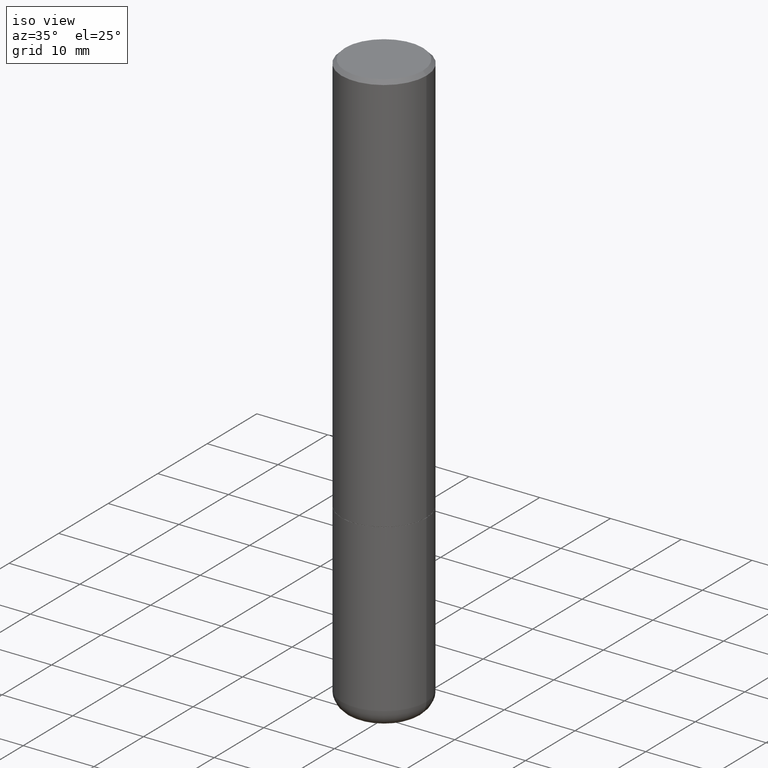
[diagram: clean part render]
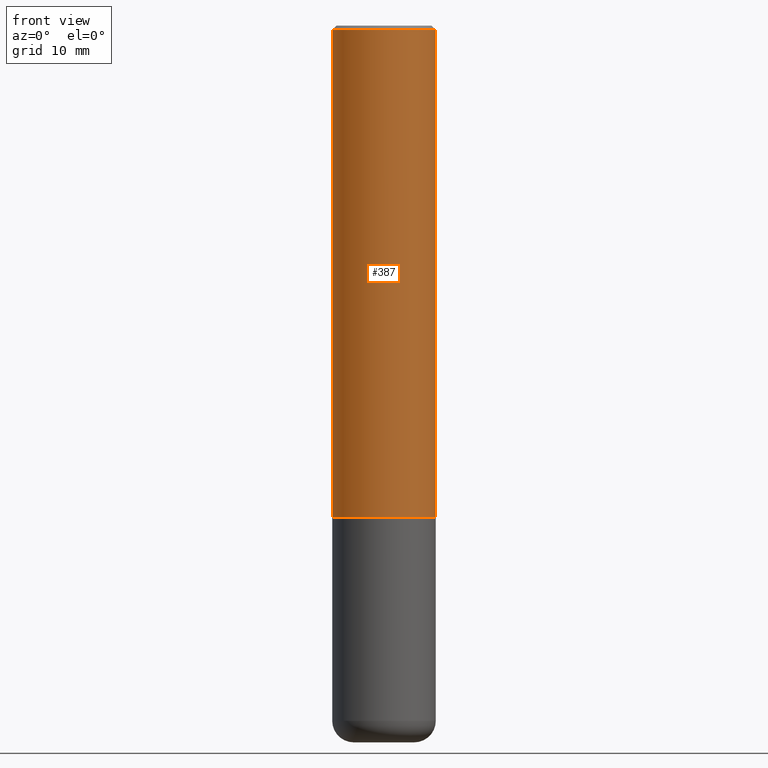
[diagram: tour spotlight — one face highlighted and labeled with its STEP entity id]
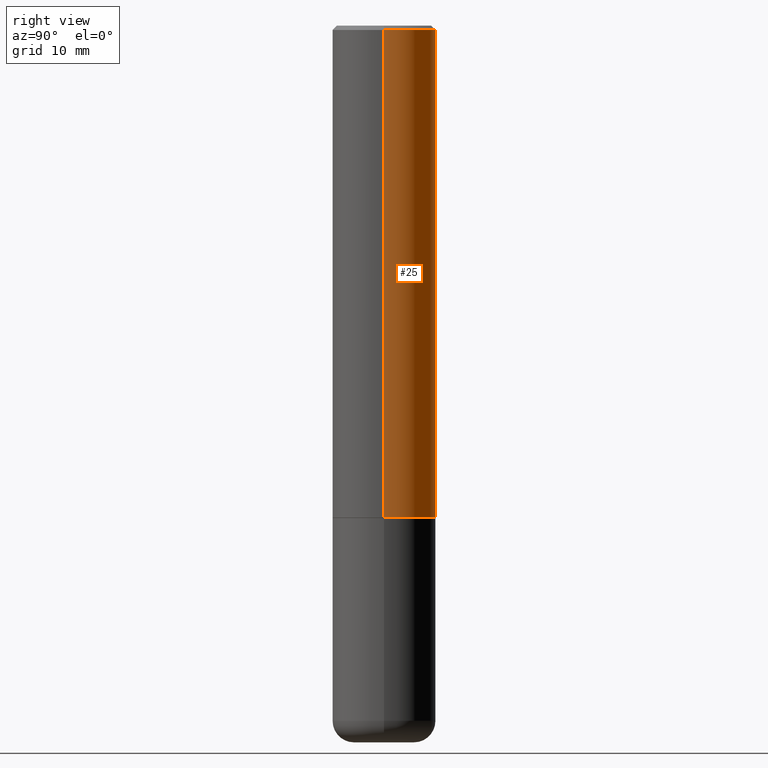
[diagram: tour spotlight — one face highlighted and labeled with its STEP entity id]
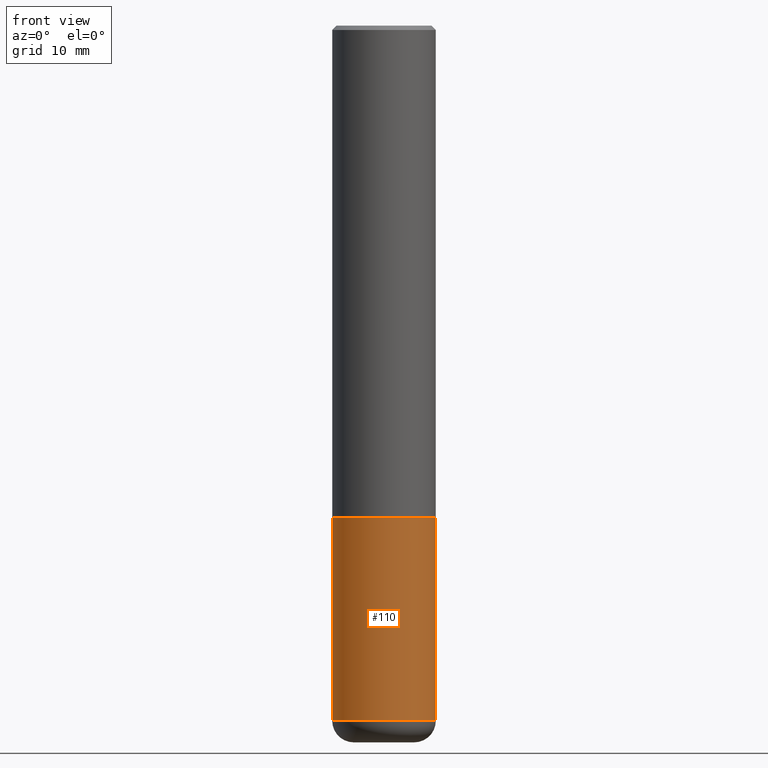
[diagram: tour spotlight — one face highlighted and labeled with its STEP entity id]
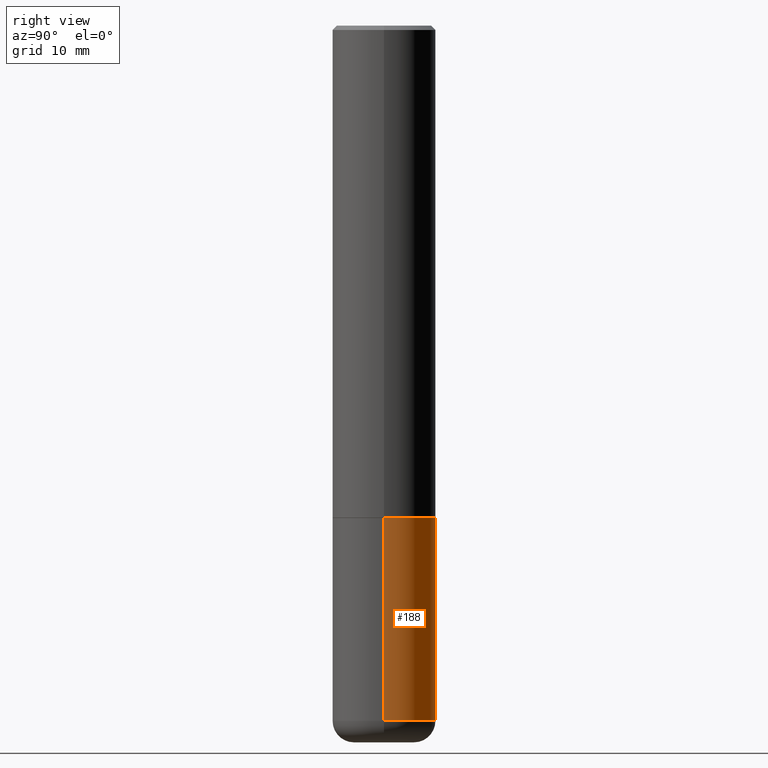
[diagram: tour spotlight — one face highlighted and labeled with its STEP entity id]
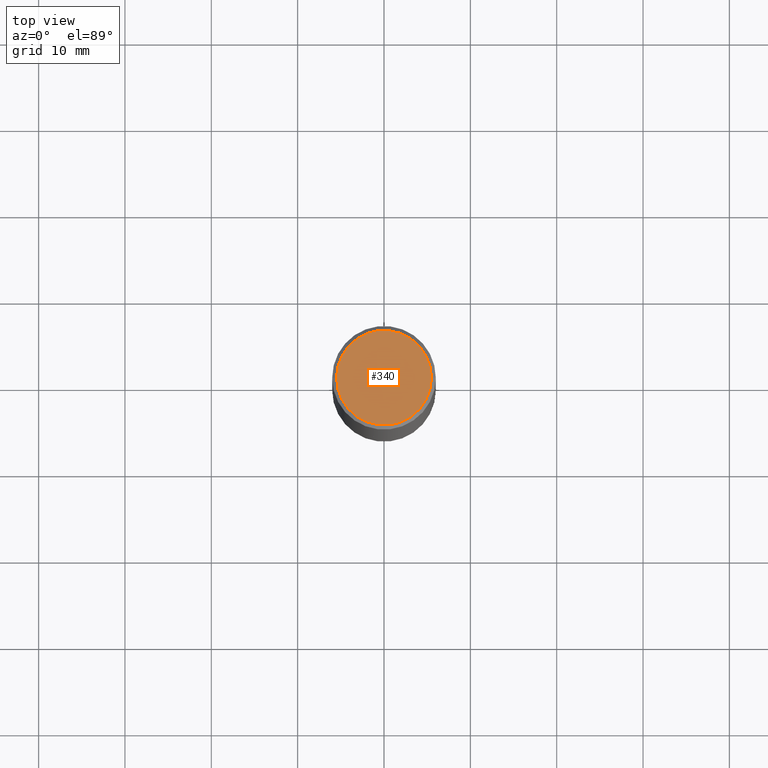
[diagram: tour spotlight — one face highlighted and labeled with its STEP entity id]
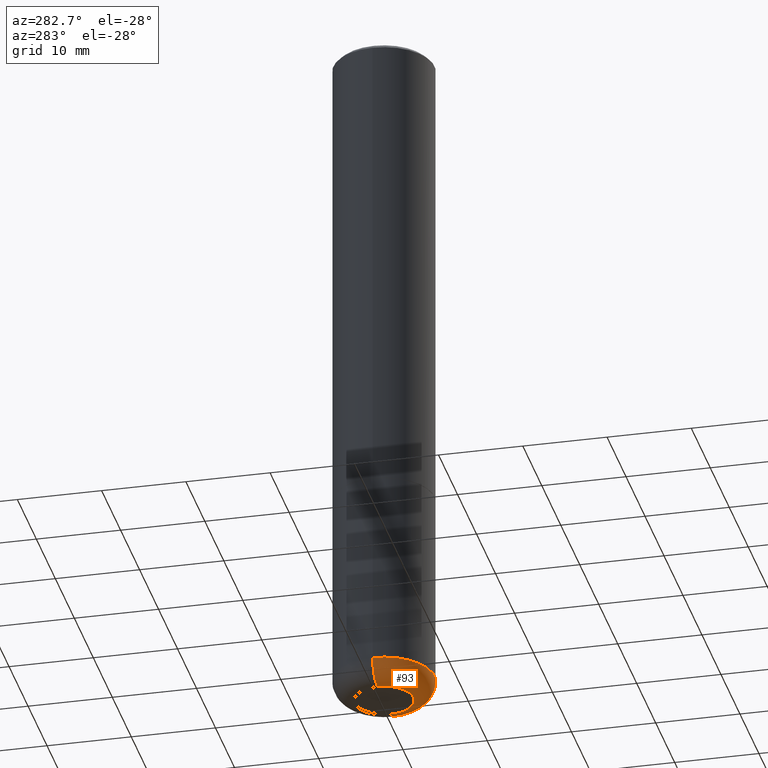
[diagram: tour spotlight — one face highlighted and labeled with its STEP entity id]
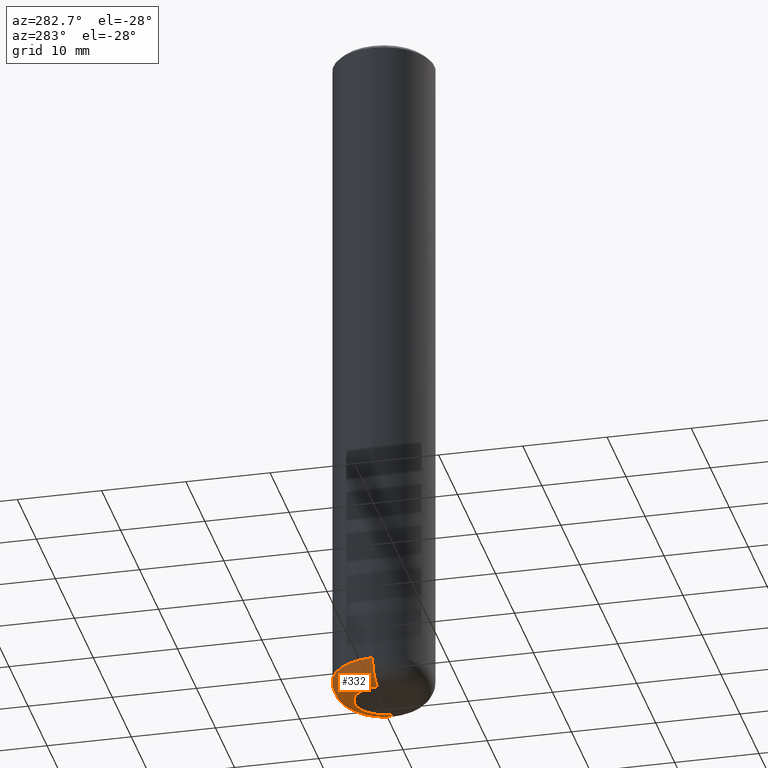
[diagram: tour spotlight — one face highlighted and labeled with its STEP entity id]
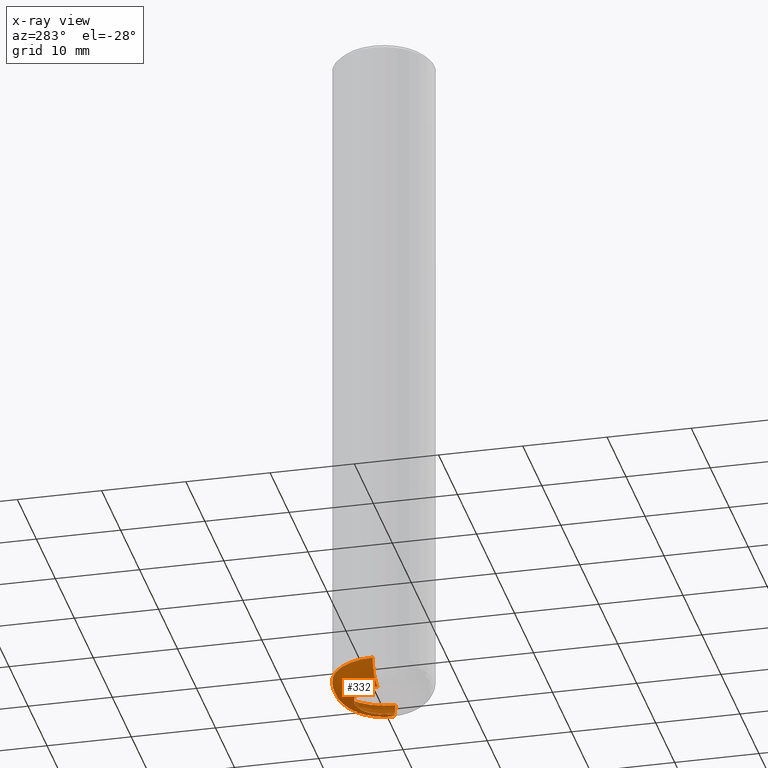
[diagram: x-ray of the same camera — body ghosted, this tour face saturated]
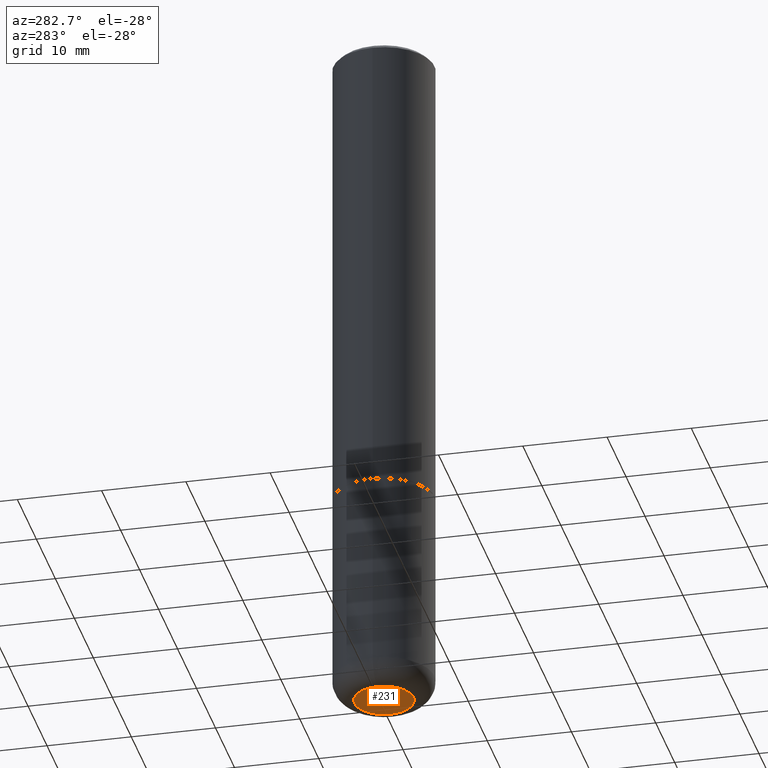
[diagram: tour spotlight — one face highlighted and labeled with its STEP entity id]
A machine part: a face-by-face anatomy tour. The part has 14 B-rep faces; the first image is the clean iso view, then the 8 largest visible faces are spotlighted one at a time (largest first), each with its STEP entity span.

Face 1 — front view, entity #387. In plain terms, the highlighted cylindrical surface (partial cylindrical patch) has radius 5.9995 mm, axis along (-0, 0, 1).
Definition (entity closure, byte-faithful):
#3 = CARTESIAN_POINT ( 'NONE',  ( 4.890937612370285420E-31, -6.982962677686308865E-17, -0.02000000000000005246 ) ) ;
#11 = ORIENTED_EDGE ( 'NONE', *, *, #197, .F. ) ;
#12 = CARTESIAN_POINT ( 'NONE',  ( -0.2362000000000001321, 1.678301941865357577E-15, -1.161852468318209457E-29 ) ) ;
#17 = VERTEX_POINT ( 'NONE', #169 ) ;
#20 = VERTEX_POINT ( 'NONE', #342 ) ;
#22 = VECTOR ( 'NONE', #134, 39.37007874015748143 ) ;
#39 = EDGE_CURVE ( 'NONE', #20, #17, #304, .T. ) ;
#42 = CARTESIAN_POINT ( 'NONE',  ( 0.000000000000000000, 0.000000000000000000, 0.000000000000000000 ) ) ;
#55 = VERTEX_POINT ( 'NONE', #270 ) ;
#105 = ORIENTED_EDGE ( 'NONE', *, *, #309, .T. ) ;
#115 = AXIS2_PLACEMENT_3D ( 'NONE', #42, #296, #330 ) ;
#119 = DIRECTION ( 'NONE',  ( -2.445468806185136597E-29, 3.491481338843145583E-15, 1.000000000000000000 ) ) ;
#121 = DIRECTION ( 'NONE',  ( -2.445468806185136877E-29, 3.491481338843145188E-15, 1.000000000000000000 ) ) ;
#133 = DIRECTION ( 'NONE',  ( -2.445468806185136597E-29, 3.491481338843145583E-15, 1.000000000000000000 ) ) ;
#134 = DIRECTION ( 'NONE',  ( -2.445468806185136877E-29, 3.491481338843145188E-15, 1.000000000000000000 ) ) ;
#151 = CIRCLE ( 'NONE', #172, 0.2361999999999999933 ) ;
#169 = CARTESIAN_POINT ( 'NONE',  ( -0.2361999999999999933, 1.579546157692633030E-15, -0.02000000000000005246 ) ) ;
#172 = AXIS2_PLACEMENT_3D ( 'NONE', #3, #119, #416 ) ;
#197 = EDGE_CURVE ( 'NONE', #17, #55, #151, .T. ) ;
#199 = ORIENTED_EDGE ( 'NONE', *, *, #39, .F. ) ;
#200 = FACE_OUTER_BOUND ( 'NONE', #329, .T. ) ;
#218 = EDGE_CURVE ( 'NONE', #273, #55, #285, .T. ) ;
#240 = DIRECTION ( 'NONE',  ( 1.000000000000000000, -6.982962677686269077E-15, 0.000000000000000000 ) ) ;
#248 = ORIENTED_EDGE ( 'NONE', *, *, #218, .T. ) ;
#250 = AXIS2_PLACEMENT_3D ( 'NONE', #305, #133, #240 ) ;
#270 = CARTESIAN_POINT ( 'NONE',  ( 0.2361999999999999933, -1.690279253850498771E-15, -0.02000000000000005246 ) ) ;
#273 = VERTEX_POINT ( 'NONE', #393 ) ;
#285 = LINE ( 'NONE', #388, #406 ) ;
#296 = DIRECTION ( 'NONE',  ( -2.445468806185136597E-29, 3.491481338843145583E-15, 1.000000000000000000 ) ) ;
#304 = LINE ( 'NONE', #12, #22 ) ;
#305 = CARTESIAN_POINT ( 'NONE',  ( 5.485431079153880270E-29, -7.831741791159060910E-15, -2.243100000000000094 ) ) ;
#307 = CIRCLE ( 'NONE', #250, 0.2362000000000002709 ) ;
#309 = EDGE_CURVE ( 'NONE', #20, #273, #307, .T. ) ;
#328 = CYLINDRICAL_SURFACE ( 'NONE', #115, 0.2362000000000001321 ) ;
#329 = EDGE_LOOP ( 'NONE', ( #199, #105, #248, #11 ) ) ;
#330 = DIRECTION ( 'NONE',  ( 1.000000000000000000, -6.982962677686266711E-15, 4.876176775795936353E-29 ) ) ;
#342 = CARTESIAN_POINT ( 'NONE',  ( -0.2362000000000002986, -2.272483767102600582E-15, -2.243100000000000094 ) ) ;
#387 = ADVANCED_FACE ( 'NONE', ( #200 ), #328, .T. ) ;
#388 = CARTESIAN_POINT ( 'NONE',  ( 0.2362000000000001321, -1.649375784469497117E-15, 1.151752954443000789E-29 ) ) ;
#393 = CARTESIAN_POINT ( 'NONE',  ( 0.2362000000000002709, -9.481117575628559013E-15, -2.243100000000000094 ) ) ;
#406 = VECTOR ( 'NONE', #121, 39.37007874015748143 ) ;
#416 = DIRECTION ( 'NONE',  ( 1.000000000000000000, -6.982962677686266711E-15, 0.000000000000000000 ) ) ;

Face 2 — right view, entity #25. In plain terms, the highlighted cylindrical surface (partial cylindrical patch) has radius 5.9995 mm, axis along (-0, 0, 1).
Definition (entity closure, byte-faithful):
#12 = CARTESIAN_POINT ( 'NONE',  ( -0.2362000000000001321, 1.678301941865357577E-15, -1.161852468318209457E-29 ) ) ;
#17 = VERTEX_POINT ( 'NONE', #169 ) ;
#20 = VERTEX_POINT ( 'NONE', #342 ) ;
#22 = VECTOR ( 'NONE', #134, 39.37007874015748143 ) ;
#25 = ADVANCED_FACE ( 'NONE', ( #47 ), #244, .T. ) ;
#33 = EDGE_CURVE ( 'NONE', #55, #17, #212, .T. ) ;
#39 = EDGE_CURVE ( 'NONE', #20, #17, #304, .T. ) ;
#45 = CARTESIAN_POINT ( 'NONE',  ( 4.890937612370285420E-31, -6.982962677686308865E-17, -0.02000000000000005246 ) ) ;
#47 = FACE_OUTER_BOUND ( 'NONE', #69, .T. ) ;
#53 = CARTESIAN_POINT ( 'NONE',  ( 0.000000000000000000, 0.000000000000000000, 0.000000000000000000 ) ) ;
#55 = VERTEX_POINT ( 'NONE', #270 ) ;
#69 = EDGE_LOOP ( 'NONE', ( #374, #116, #228, #98 ) ) ;
#78 = DIRECTION ( 'NONE',  ( 1.000000000000000000, -6.982962677686266711E-15, 0.000000000000000000 ) ) ;
#84 = DIRECTION ( 'NONE',  ( -2.445468806185136597E-29, 3.491481338843145583E-15, 1.000000000000000000 ) ) ;
#86 = AXIS2_PLACEMENT_3D ( 'NONE', #53, #84, #144 ) ;
#98 = ORIENTED_EDGE ( 'NONE', *, *, #218, .F. ) ;
#102 = EDGE_CURVE ( 'NONE', #273, #20, #381, .T. ) ;
#116 = ORIENTED_EDGE ( 'NONE', *, *, #39, .T. ) ;
#121 = DIRECTION ( 'NONE',  ( -2.445468806185136877E-29, 3.491481338843145188E-15, 1.000000000000000000 ) ) ;
#134 = DIRECTION ( 'NONE',  ( -2.445468806185136877E-29, 3.491481338843145188E-15, 1.000000000000000000 ) ) ;
#144 = DIRECTION ( 'NONE',  ( 1.000000000000000000, -6.982962677686266711E-15, 4.876176775795936353E-29 ) ) ;
#169 = CARTESIAN_POINT ( 'NONE',  ( -0.2361999999999999933, 1.579546157692633030E-15, -0.02000000000000005246 ) ) ;
#185 = DIRECTION ( 'NONE',  ( -2.445468806185136597E-29, 3.491481338843145583E-15, 1.000000000000000000 ) ) ;
#203 = AXIS2_PLACEMENT_3D ( 'NONE', #392, #185, #390 ) ;
#212 = CIRCLE ( 'NONE', #417, 0.2361999999999999933 ) ;
#218 = EDGE_CURVE ( 'NONE', #273, #55, #285, .T. ) ;
#228 = ORIENTED_EDGE ( 'NONE', *, *, #33, .F. ) ;
#244 = CYLINDRICAL_SURFACE ( 'NONE', #86, 0.2362000000000001321 ) ;
#270 = CARTESIAN_POINT ( 'NONE',  ( 0.2361999999999999933, -1.690279253850498771E-15, -0.02000000000000005246 ) ) ;
#273 = VERTEX_POINT ( 'NONE', #393 ) ;
#285 = LINE ( 'NONE', #388, #406 ) ;
#304 = LINE ( 'NONE', #12, #22 ) ;
#342 = CARTESIAN_POINT ( 'NONE',  ( -0.2362000000000002986, -2.272483767102600582E-15, -2.243100000000000094 ) ) ;
#369 = DIRECTION ( 'NONE',  ( -2.445468806185136597E-29, 3.491481338843145583E-15, 1.000000000000000000 ) ) ;
#374 = ORIENTED_EDGE ( 'NONE', *, *, #102, .T. ) ;
#381 = CIRCLE ( 'NONE', #203, 0.2362000000000002709 ) ;
#388 = CARTESIAN_POINT ( 'NONE',  ( 0.2362000000000001321, -1.649375784469497117E-15, 1.151752954443000789E-29 ) ) ;
#390 = DIRECTION ( 'NONE',  ( 1.000000000000000000, -6.982962677686269077E-15, 0.000000000000000000 ) ) ;
#392 = CARTESIAN_POINT ( 'NONE',  ( 5.485431079153880270E-29, -7.831741791159060910E-15, -2.243100000000000094 ) ) ;
#393 = CARTESIAN_POINT ( 'NONE',  ( 0.2362000000000002709, -9.481117575628559013E-15, -2.243100000000000094 ) ) ;
#406 = VECTOR ( 'NONE', #121, 39.37007874015748143 ) ;
#417 = AXIS2_PLACEMENT_3D ( 'NONE', #45, #369, #78 ) ;

Face 3 — front view, entity #110. In plain terms, the highlighted cylindrical surface (partial cylindrical patch) has radius 5.9995 mm, axis along (-0, 0, 1).
Definition (entity closure, byte-faithful):
#14 = CIRCLE ( 'NONE', #269, 0.2362000000000000210 ) ;
#26 = EDGE_CURVE ( 'NONE', #74, #378, #318, .T. ) ;
#31 = DIRECTION ( 'NONE',  ( -2.445468806185136597E-29, 3.491481338843145583E-15, 1.000000000000000000 ) ) ;
#32 = CARTESIAN_POINT ( 'NONE',  ( -0.2361999999999999933, -7.772090597981385734E-15, -2.244100000000000428 ) ) ;
#35 = DIRECTION ( 'NONE',  ( -2.445468806185136597E-29, 3.491481338843145583E-15, 1.000000000000000000 ) ) ;
#38 = CARTESIAN_POINT ( 'NONE',  ( 0.2361999999999999933, -1.649375784469496131E-15, 1.151752954443000088E-29 ) ) ;
#40 = DIRECTION ( 'NONE',  ( -2.445468806185136877E-29, 3.491481338843145188E-15, 1.000000000000000000 ) ) ;
#41 = ORIENTED_EDGE ( 'NONE', *, *, #368, .F. ) ;
#62 = CARTESIAN_POINT ( 'NONE',  ( 0.2362000000000002153, -1.271492759166507844E-14, -3.169299999999999784 ) ) ;
#72 = VERTEX_POINT ( 'NONE', #62 ) ;
#74 = VERTEX_POINT ( 'NONE', #32 ) ;
#90 = DIRECTION ( 'NONE',  ( -2.445468806185136877E-29, 3.491481338843145188E-15, 1.000000000000000000 ) ) ;
#95 = EDGE_CURVE ( 'NONE', #295, #72, #14, .T. ) ;
#110 = ADVANCED_FACE ( 'NONE', ( #189 ), #224, .T. ) ;
#129 = CARTESIAN_POINT ( 'NONE',  ( -0.2362000000000002153, -9.387249865330223945E-15, -3.169299999999999784 ) ) ;
#130 = EDGE_CURVE ( 'NONE', #72, #378, #187, .T. ) ;
#140 = ORIENTED_EDGE ( 'NONE', *, *, #130, .T. ) ;
#147 = VECTOR ( 'NONE', #40, 39.37007874015748143 ) ;
#154 = ORIENTED_EDGE ( 'NONE', *, *, #95, .T. ) ;
#167 = DIRECTION ( 'NONE',  ( -2.445468806185136597E-29, 3.491481338843145583E-15, 1.000000000000000000 ) ) ;
#187 = LINE ( 'NONE', #38, #297 ) ;
#189 = FACE_OUTER_BOUND ( 'NONE', #191, .T. ) ;
#191 = EDGE_LOOP ( 'NONE', ( #41, #154, #140, #402 ) ) ;
#198 = CARTESIAN_POINT ( 'NONE',  ( -0.2361999999999999933, 1.678301941865356591E-15, -1.161852468318208757E-29 ) ) ;
#224 = CYLINDRICAL_SURFACE ( 'NONE', #255, 0.2361999999999999933 ) ;
#255 = AXIS2_PLACEMENT_3D ( 'NONE', #323, #31, #312 ) ;
#260 = CARTESIAN_POINT ( 'NONE',  ( 7.750424287442554569E-29, -1.106555180719558034E-14, -3.169299999999999784 ) ) ;
#261 = CARTESIAN_POINT ( 'NONE',  ( 0.2361999999999999933, -9.484609056967400443E-15, -2.244100000000000428 ) ) ;
#266 = CARTESIAN_POINT ( 'NONE',  ( 5.487876547960065873E-29, -7.835233272497903917E-15, -2.244100000000000428 ) ) ;
#269 = AXIS2_PLACEMENT_3D ( 'NONE', #260, #35, #325 ) ;
#277 = DIRECTION ( 'NONE',  ( 1.000000000000000000, -6.982962677686269077E-15, 0.000000000000000000 ) ) ;
#295 = VERTEX_POINT ( 'NONE', #129 ) ;
#297 = VECTOR ( 'NONE', #90, 39.37007874015748143 ) ;
#312 = DIRECTION ( 'NONE',  ( 1.000000000000000000, -6.982962677686266711E-15, 4.876176775795936353E-29 ) ) ;
#318 = CIRCLE ( 'NONE', #366, 0.2361999999999999933 ) ;
#323 = CARTESIAN_POINT ( 'NONE',  ( 0.000000000000000000, 0.000000000000000000, 0.000000000000000000 ) ) ;
#325 = DIRECTION ( 'NONE',  ( 1.000000000000000000, -6.982962677686264344E-15, 0.000000000000000000 ) ) ;
#326 = LINE ( 'NONE', #198, #147 ) ;
#366 = AXIS2_PLACEMENT_3D ( 'NONE', #266, #167, #277 ) ;
#368 = EDGE_CURVE ( 'NONE', #295, #74, #326, .T. ) ;
#378 = VERTEX_POINT ( 'NONE', #261 ) ;
#402 = ORIENTED_EDGE ( 'NONE', *, *, #26, .F. ) ;

Face 4 — right view, entity #188. In plain terms, the highlighted cylindrical surface (partial cylindrical patch) has radius 5.9995 mm, axis along (-0, 0, 1).
Definition (entity closure, byte-faithful):
#15 = ORIENTED_EDGE ( 'NONE', *, *, #363, .F. ) ;
#28 = AXIS2_PLACEMENT_3D ( 'NONE', #152, #409, #256 ) ;
#32 = CARTESIAN_POINT ( 'NONE',  ( -0.2361999999999999933, -7.772090597981385734E-15, -2.244100000000000428 ) ) ;
#38 = CARTESIAN_POINT ( 'NONE',  ( 0.2361999999999999933, -1.649375784469496131E-15, 1.151752954443000088E-29 ) ) ;
#40 = DIRECTION ( 'NONE',  ( -2.445468806185136877E-29, 3.491481338843145188E-15, 1.000000000000000000 ) ) ;
#62 = CARTESIAN_POINT ( 'NONE',  ( 0.2362000000000002153, -1.271492759166507844E-14, -3.169299999999999784 ) ) ;
#72 = VERTEX_POINT ( 'NONE', #62 ) ;
#74 = VERTEX_POINT ( 'NONE', #32 ) ;
#90 = DIRECTION ( 'NONE',  ( -2.445468806185136877E-29, 3.491481338843145188E-15, 1.000000000000000000 ) ) ;
#113 = ORIENTED_EDGE ( 'NONE', *, *, #368, .T. ) ;
#124 = CYLINDRICAL_SURFACE ( 'NONE', #28, 0.2361999999999999933 ) ;
#129 = CARTESIAN_POINT ( 'NONE',  ( -0.2362000000000002153, -9.387249865330223945E-15, -3.169299999999999784 ) ) ;
#130 = EDGE_CURVE ( 'NONE', #72, #378, #187, .T. ) ;
#147 = VECTOR ( 'NONE', #40, 39.37007874015748143 ) ;
#152 = CARTESIAN_POINT ( 'NONE',  ( 0.000000000000000000, 0.000000000000000000, 0.000000000000000000 ) ) ;
#159 = CIRCLE ( 'NONE', #225, 0.2362000000000000210 ) ;
#162 = CARTESIAN_POINT ( 'NONE',  ( 7.750424287442554569E-29, -1.106555180719558034E-14, -3.169299999999999784 ) ) ;
#163 = DIRECTION ( 'NONE',  ( -2.445468806185136597E-29, 3.491481338843145583E-15, 1.000000000000000000 ) ) ;
#166 = DIRECTION ( 'NONE',  ( -2.445468806185136597E-29, 3.491481338843145583E-15, 1.000000000000000000 ) ) ;
#171 = ORIENTED_EDGE ( 'NONE', *, *, #130, .F. ) ;
#180 = FACE_OUTER_BOUND ( 'NONE', #233, .T. ) ;
#187 = LINE ( 'NONE', #38, #297 ) ;
#188 = ADVANCED_FACE ( 'NONE', ( #180 ), #124, .T. ) ;
#195 = DIRECTION ( 'NONE',  ( 1.000000000000000000, -6.982962677686269077E-15, 0.000000000000000000 ) ) ;
#198 = CARTESIAN_POINT ( 'NONE',  ( -0.2361999999999999933, 1.678301941865356591E-15, -1.161852468318208757E-29 ) ) ;
#225 = AXIS2_PLACEMENT_3D ( 'NONE', #162, #163, #293 ) ;
#229 = CARTESIAN_POINT ( 'NONE',  ( 5.487876547960065873E-29, -7.835233272497903917E-15, -2.244100000000000428 ) ) ;
#233 = EDGE_LOOP ( 'NONE', ( #311, #113, #15, #171 ) ) ;
#256 = DIRECTION ( 'NONE',  ( 1.000000000000000000, -6.982962677686266711E-15, 4.876176775795936353E-29 ) ) ;
#261 = CARTESIAN_POINT ( 'NONE',  ( 0.2361999999999999933, -9.484609056967400443E-15, -2.244100000000000428 ) ) ;
#293 = DIRECTION ( 'NONE',  ( 1.000000000000000000, -6.982962677686264344E-15, 0.000000000000000000 ) ) ;
#295 = VERTEX_POINT ( 'NONE', #129 ) ;
#297 = VECTOR ( 'NONE', #90, 39.37007874015748143 ) ;
#311 = ORIENTED_EDGE ( 'NONE', *, *, #371, .T. ) ;
#319 = AXIS2_PLACEMENT_3D ( 'NONE', #229, #166, #195 ) ;
#326 = LINE ( 'NONE', #198, #147 ) ;
#363 = EDGE_CURVE ( 'NONE', #378, #74, #418, .T. ) ;
#368 = EDGE_CURVE ( 'NONE', #295, #74, #326, .T. ) ;
#371 = EDGE_CURVE ( 'NONE', #72, #295, #159, .T. ) ;
#378 = VERTEX_POINT ( 'NONE', #261 ) ;
#409 = DIRECTION ( 'NONE',  ( -2.445468806185136597E-29, 3.491481338843145583E-15, 1.000000000000000000 ) ) ;
#418 = CIRCLE ( 'NONE', #319, 0.2361999999999999933 ) ;

Face 5 — top view, entity #340. In plain terms, the highlighted planar face has unit normal (0, -0, -1).
Definition (entity closure, byte-faithful):
#6 = EDGE_LOOP ( 'NONE', ( #398, #96 ) ) ;
#19 = EDGE_CURVE ( 'NONE', #196, #287, #237, .T. ) ;
#48 = CARTESIAN_POINT ( 'NONE',  ( 1.509716530915769534E-15, 0.2161999999999998368, -6.822935531261805704E-16 ) ) ;
#60 = AXIS2_PLACEMENT_3D ( 'NONE', #97, #335, #170 ) ;
#77 = DIRECTION ( 'NONE',  ( 2.438088387897960049E-29, -3.491481338843145188E-15, -1.000000000000000000 ) ) ;
#96 = ORIENTED_EDGE ( 'NONE', *, *, #274, .T. ) ;
#97 = CARTESIAN_POINT ( 'NONE',  ( -3.549094808739746881E-45, 5.067166779293519988E-31, 1.451294246634139896E-16 ) ) ;
#99 = PLANE ( 'NONE',  #360 ) ;
#132 = DIRECTION ( 'NONE',  ( -2.445468806185136597E-29, 3.491481338843145583E-15, 1.000000000000000000 ) ) ;
#158 = CIRCLE ( 'NONE', #60, 0.2161999999999998368 ) ;
#170 = DIRECTION ( 'NONE',  ( 1.000000000000000000, -6.982962677686266711E-15, 4.881916136609865378E-29 ) ) ;
#196 = VERTEX_POINT ( 'NONE', #414 ) ;
#207 = DIRECTION ( 'NONE',  ( -1.000000000000000000, 6.982962677686265922E-15, -4.876176775795935793E-29 ) ) ;
#211 = CARTESIAN_POINT ( 'NONE',  ( -3.549094808739746881E-45, 5.067166779293519988E-31, 1.451294246634139896E-16 ) ) ;
#237 = CIRCLE ( 'NONE', #353, 0.2161999999999998368 ) ;
#274 = EDGE_CURVE ( 'NONE', #287, #196, #158, .T. ) ;
#287 = VERTEX_POINT ( 'NONE', #303 ) ;
#300 = FACE_OUTER_BOUND ( 'NONE', #6, .T. ) ;
#303 = CARTESIAN_POINT ( 'NONE',  ( 0.2161999999999998368, -1.586759460484351002E-15, 1.451294246634248118E-16 ) ) ;
#310 = DIRECTION ( 'NONE',  ( 1.000000000000000000, -6.982962677686266711E-15, 4.881916136609865378E-29 ) ) ;
#335 = DIRECTION ( 'NONE',  ( -2.445468806185136597E-29, 3.491481338843145583E-15, 1.000000000000000000 ) ) ;
#340 = ADVANCED_FACE ( 'NONE', ( #300 ), #99, .F. ) ;
#353 = AXIS2_PLACEMENT_3D ( 'NONE', #211, #132, #310 ) ;
#360 = AXIS2_PLACEMENT_3D ( 'NONE', #48, #77, #207 ) ;
#398 = ORIENTED_EDGE ( 'NONE', *, *, #19, .T. ) ;
#414 = CARTESIAN_POINT ( 'NONE',  ( -0.2161999999999998368, 1.544631344304201775E-15, 1.451294246634033154E-16 ) ) ;

Face 6 — auxiliary view, entity #93. In plain terms, the highlighted toroidal blend (fillet) surface has major radius 3.5001 mm and minor (blend) radius 2.4994 mm.
Definition (entity closure, byte-faithful):
#4 = DIRECTION ( 'NONE',  ( 1.000000000000000000, -6.982962677686265922E-15, 0.000000000000000000 ) ) ;
#14 = CIRCLE ( 'NONE', #269, 0.2362000000000000210 ) ;
#24 = FACE_OUTER_BOUND ( 'NONE', #43, .T. ) ;
#35 = DIRECTION ( 'NONE',  ( -2.445468806185136597E-29, 3.491481338843145583E-15, 1.000000000000000000 ) ) ;
#43 = EDGE_LOOP ( 'NONE', ( #241, #301, #407, #400 ) ) ;
#62 = CARTESIAN_POINT ( 'NONE',  ( 0.2362000000000002153, -1.271492759166507844E-14, -3.169299999999999784 ) ) ;
#71 = DIRECTION ( 'NONE',  ( 1.000000000000000000, -6.982962677686272233E-15, 0.000000000000000000 ) ) ;
#72 = VERTEX_POINT ( 'NONE', #62 ) ;
#93 = ADVANCED_FACE ( 'NONE', ( #24 ), #181, .T. ) ;
#95 = EDGE_CURVE ( 'NONE', #295, #72, #14, .T. ) ;
#106 = AXIS2_PLACEMENT_3D ( 'NONE', #235, #370, #395 ) ;
#122 = DIRECTION ( 'NONE',  ( -2.445468806185136597E-29, 3.491481338843145583E-15, 1.000000000000000000 ) ) ;
#123 = CIRCLE ( 'NONE', #246, 0.1378000000000000058 ) ;
#125 = CARTESIAN_POINT ( 'NONE',  ( 7.750424287442554569E-29, -1.106555180719558034E-14, -3.169299999999999784 ) ) ;
#129 = CARTESIAN_POINT ( 'NONE',  ( -0.2362000000000002153, -9.387249865330223945E-15, -3.169299999999999784 ) ) ;
#131 = CARTESIAN_POINT ( 'NONE',  ( -0.1378000000000000058, -9.908617773195273284E-15, -3.267700000000000937 ) ) ;
#136 = AXIS2_PLACEMENT_3D ( 'NONE', #125, #122, #161 ) ;
#161 = DIRECTION ( 'NONE',  ( 1.000000000000000000, -6.982962677686269077E-15, 4.883557194083113462E-29 ) ) ;
#181 = TOROIDAL_SURFACE ( 'NONE', #136, 0.1378000000000000058, 0.09840000000000040381 ) ;
#232 = CARTESIAN_POINT ( 'NONE',  ( 0.1378000000000000058, -1.202780406418074782E-14, -3.169299999999999784 ) ) ;
#234 = DIRECTION ( 'NONE',  ( -2.445468806185136597E-29, 3.491481338843145583E-15, 1.000000000000000000 ) ) ;
#235 = CARTESIAN_POINT ( 'NONE',  ( -0.1378000000000000058, -1.008642391731816283E-14, -3.169299999999999784 ) ) ;
#241 = ORIENTED_EDGE ( 'NONE', *, *, #254, .F. ) ;
#246 = AXIS2_PLACEMENT_3D ( 'NONE', #399, #234, #4 ) ;
#254 = EDGE_CURVE ( 'NONE', #291, #295, #385, .T. ) ;
#260 = CARTESIAN_POINT ( 'NONE',  ( 7.750424287442554569E-29, -1.106555180719558034E-14, -3.169299999999999784 ) ) ;
#269 = AXIS2_PLACEMENT_3D ( 'NONE', #260, #35, #325 ) ;
#271 = AXIS2_PLACEMENT_3D ( 'NONE', #232, #362, #71 ) ;
#291 = VERTEX_POINT ( 'NONE', #131 ) ;
#295 = VERTEX_POINT ( 'NONE', #129 ) ;
#301 = ORIENTED_EDGE ( 'NONE', *, *, #321, .T. ) ;
#321 = EDGE_CURVE ( 'NONE', #291, #336, #123, .T. ) ;
#325 = DIRECTION ( 'NONE',  ( 1.000000000000000000, -6.982962677686264344E-15, 0.000000000000000000 ) ) ;
#336 = VERTEX_POINT ( 'NONE', #397 ) ;
#362 = DIRECTION ( 'NONE',  ( -6.982962677686266711E-15, -1.000000000000000000, 3.491481338843145583E-15 ) ) ;
#370 = DIRECTION ( 'NONE',  ( 7.105427357601001859E-15, 1.000000000000000000, -3.491481338843145583E-15 ) ) ;
#382 = EDGE_CURVE ( 'NONE', #336, #72, #386, .T. ) ;
#385 = CIRCLE ( 'NONE', #106, 0.09840000000000040381 ) ;
#386 = CIRCLE ( 'NONE', #271, 0.09840000000000040381 ) ;
#395 = DIRECTION ( 'NONE',  ( -1.000000000000000000, 7.105427357601009747E-15, 0.000000000000000000 ) ) ;
#397 = CARTESIAN_POINT ( 'NONE',  ( 0.1378000000000000058, -1.237136582792291707E-14, -3.267700000000000937 ) ) ;
#399 = CARTESIAN_POINT ( 'NONE',  ( 7.991058417971172834E-29, -1.140911357093774960E-14, -3.267700000000000937 ) ) ;
#400 = ORIENTED_EDGE ( 'NONE', *, *, #95, .F. ) ;
#407 = ORIENTED_EDGE ( 'NONE', *, *, #382, .T. ) ;

Face 7 — auxiliary view, entity #332. An x-ray twin of the same camera follows (body ghosted, this face saturated) — the face is partly hidden behind the body. In plain terms, the highlighted toroidal blend (fillet) surface has major radius 3.5001 mm and minor (blend) radius 2.4994 mm.
Definition (entity closure, byte-faithful):
#23 = CIRCLE ( 'NONE', #52, 0.1378000000000000058 ) ;
#44 = DIRECTION ( 'NONE',  ( -2.445468806185136597E-29, 3.491481338843145583E-15, 1.000000000000000000 ) ) ;
#52 = AXIS2_PLACEMENT_3D ( 'NONE', #268, #44, #73 ) ;
#62 = CARTESIAN_POINT ( 'NONE',  ( 0.2362000000000002153, -1.271492759166507844E-14, -3.169299999999999784 ) ) ;
#68 = CARTESIAN_POINT ( 'NONE',  ( 7.750424287442554569E-29, -1.106555180719558034E-14, -3.169299999999999784 ) ) ;
#71 = DIRECTION ( 'NONE',  ( 1.000000000000000000, -6.982962677686272233E-15, 0.000000000000000000 ) ) ;
#72 = VERTEX_POINT ( 'NONE', #62 ) ;
#73 = DIRECTION ( 'NONE',  ( 1.000000000000000000, -6.982962677686265922E-15, 0.000000000000000000 ) ) ;
#82 = ORIENTED_EDGE ( 'NONE', *, *, #254, .T. ) ;
#106 = AXIS2_PLACEMENT_3D ( 'NONE', #235, #370, #395 ) ;
#108 = ORIENTED_EDGE ( 'NONE', *, *, #302, .T. ) ;
#129 = CARTESIAN_POINT ( 'NONE',  ( -0.2362000000000002153, -9.387249865330223945E-15, -3.169299999999999784 ) ) ;
#131 = CARTESIAN_POINT ( 'NONE',  ( -0.1378000000000000058, -9.908617773195273284E-15, -3.267700000000000937 ) ) ;
#159 = CIRCLE ( 'NONE', #225, 0.2362000000000000210 ) ;
#160 = ORIENTED_EDGE ( 'NONE', *, *, #382, .F. ) ;
#162 = CARTESIAN_POINT ( 'NONE',  ( 7.750424287442554569E-29, -1.106555180719558034E-14, -3.169299999999999784 ) ) ;
#163 = DIRECTION ( 'NONE',  ( -2.445468806185136597E-29, 3.491481338843145583E-15, 1.000000000000000000 ) ) ;
#186 = AXIS2_PLACEMENT_3D ( 'NONE', #68, #265, #263 ) ;
#225 = AXIS2_PLACEMENT_3D ( 'NONE', #162, #163, #293 ) ;
#232 = CARTESIAN_POINT ( 'NONE',  ( 0.1378000000000000058, -1.202780406418074782E-14, -3.169299999999999784 ) ) ;
#235 = CARTESIAN_POINT ( 'NONE',  ( -0.1378000000000000058, -1.008642391731816283E-14, -3.169299999999999784 ) ) ;
#254 = EDGE_CURVE ( 'NONE', #291, #295, #385, .T. ) ;
#263 = DIRECTION ( 'NONE',  ( 1.000000000000000000, -6.982962677686269077E-15, 4.883557194083113462E-29 ) ) ;
#265 = DIRECTION ( 'NONE',  ( -2.445468806185136597E-29, 3.491481338843145583E-15, 1.000000000000000000 ) ) ;
#268 = CARTESIAN_POINT ( 'NONE',  ( 7.991058417971172834E-29, -1.140911357093774960E-14, -3.267700000000000937 ) ) ;
#271 = AXIS2_PLACEMENT_3D ( 'NONE', #232, #362, #71 ) ;
#291 = VERTEX_POINT ( 'NONE', #131 ) ;
#293 = DIRECTION ( 'NONE',  ( 1.000000000000000000, -6.982962677686264344E-15, 0.000000000000000000 ) ) ;
#295 = VERTEX_POINT ( 'NONE', #129 ) ;
#302 = EDGE_CURVE ( 'NONE', #336, #291, #23, .T. ) ;
#314 = TOROIDAL_SURFACE ( 'NONE', #186, 0.1378000000000000058, 0.09840000000000040381 ) ;
#327 = ORIENTED_EDGE ( 'NONE', *, *, #371, .F. ) ;
#332 = ADVANCED_FACE ( 'NONE', ( #359 ), #314, .T. ) ;
#336 = VERTEX_POINT ( 'NONE', #397 ) ;
#339 = EDGE_LOOP ( 'NONE', ( #108, #82, #327, #160 ) ) ;
#359 = FACE_OUTER_BOUND ( 'NONE', #339, .T. ) ;
#362 = DIRECTION ( 'NONE',  ( -6.982962677686266711E-15, -1.000000000000000000, 3.491481338843145583E-15 ) ) ;
#370 = DIRECTION ( 'NONE',  ( 7.105427357601001859E-15, 1.000000000000000000, -3.491481338843145583E-15 ) ) ;
#371 = EDGE_CURVE ( 'NONE', #72, #295, #159, .T. ) ;
#382 = EDGE_CURVE ( 'NONE', #336, #72, #386, .T. ) ;
#385 = CIRCLE ( 'NONE', #106, 0.09840000000000040381 ) ;
#386 = CIRCLE ( 'NONE', #271, 0.09840000000000040381 ) ;
#395 = DIRECTION ( 'NONE',  ( -1.000000000000000000, 7.105427357601009747E-15, 0.000000000000000000 ) ) ;
#397 = CARTESIAN_POINT ( 'NONE',  ( 0.1378000000000000058, -1.237136582792291707E-14, -3.267700000000000937 ) ) ;

Face 8 — auxiliary view, entity #231. In plain terms, the highlighted planar face has unit normal (0, -0, -1).
Definition (entity closure, byte-faithful):
#4 = DIRECTION ( 'NONE',  ( 1.000000000000000000, -6.982962677686265922E-15, 0.000000000000000000 ) ) ;
#23 = CIRCLE ( 'NONE', #52, 0.1378000000000000058 ) ;
#44 = DIRECTION ( 'NONE',  ( -2.445468806185136597E-29, 3.491481338843145583E-15, 1.000000000000000000 ) ) ;
#52 = AXIS2_PLACEMENT_3D ( 'NONE', #268, #44, #73 ) ;
#64 = DIRECTION ( 'NONE',  ( -1.000000000000000000, 6.982962677686265922E-15, -4.876176775795935793E-29 ) ) ;
#73 = DIRECTION ( 'NONE',  ( 1.000000000000000000, -6.982962677686265922E-15, 0.000000000000000000 ) ) ;
#92 = PLANE ( 'NONE',  #223 ) ;
#123 = CIRCLE ( 'NONE', #246, 0.1378000000000000058 ) ;
#131 = CARTESIAN_POINT ( 'NONE',  ( -0.1378000000000000058, -9.908617773195273284E-15, -3.267700000000000937 ) ) ;
#204 = ORIENTED_EDGE ( 'NONE', *, *, #321, .F. ) ;
#208 = EDGE_LOOP ( 'NONE', ( #334, #204 ) ) ;
#223 = AXIS2_PLACEMENT_3D ( 'NONE', #226, #355, #64 ) ;
#226 = CARTESIAN_POINT ( 'NONE',  ( -1.056246086601801167E-29, -2.436536856207956870E-14, -3.267700000000000937 ) ) ;
#231 = ADVANCED_FACE ( 'NONE', ( #253 ), #92, .T. ) ;
#234 = DIRECTION ( 'NONE',  ( -2.445468806185136597E-29, 3.491481338843145583E-15, 1.000000000000000000 ) ) ;
#246 = AXIS2_PLACEMENT_3D ( 'NONE', #399, #234, #4 ) ;
#253 = FACE_OUTER_BOUND ( 'NONE', #208, .T. ) ;
#268 = CARTESIAN_POINT ( 'NONE',  ( 7.991058417971172834E-29, -1.140911357093774960E-14, -3.267700000000000937 ) ) ;
#291 = VERTEX_POINT ( 'NONE', #131 ) ;
#302 = EDGE_CURVE ( 'NONE', #336, #291, #23, .T. ) ;
#321 = EDGE_CURVE ( 'NONE', #291, #336, #123, .T. ) ;
#334 = ORIENTED_EDGE ( 'NONE', *, *, #302, .F. ) ;
#336 = VERTEX_POINT ( 'NONE', #397 ) ;
#355 = DIRECTION ( 'NONE',  ( 2.438088387897960049E-29, -3.491481338843145188E-15, -1.000000000000000000 ) ) ;
#397 = CARTESIAN_POINT ( 'NONE',  ( 0.1378000000000000058, -1.237136582792291707E-14, -3.267700000000000937 ) ) ;
#399 = CARTESIAN_POINT ( 'NONE',  ( 7.991058417971172834E-29, -1.140911357093774960E-14, -3.267700000000000937 ) ) ;